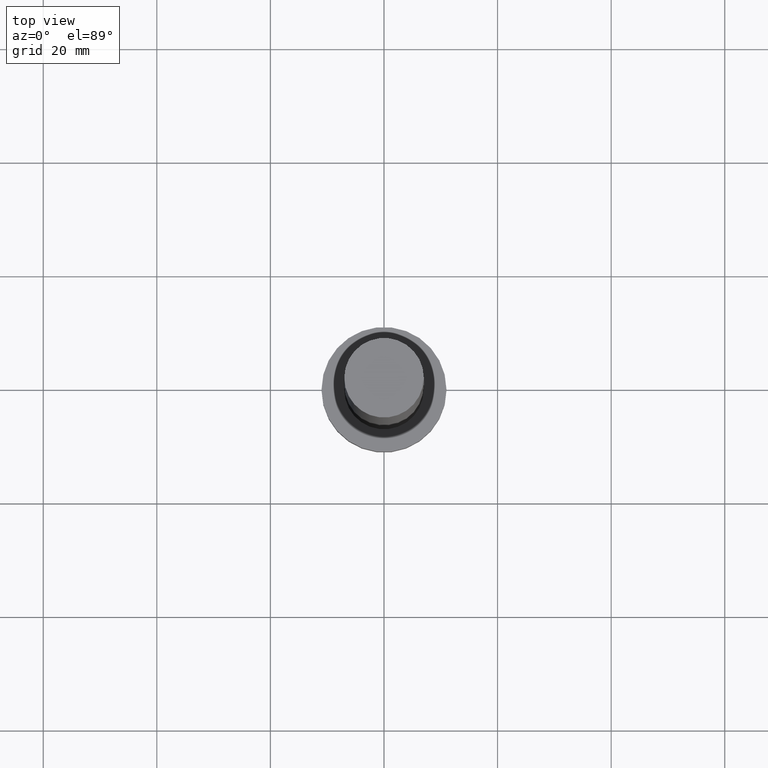
[diagram: clean part render]
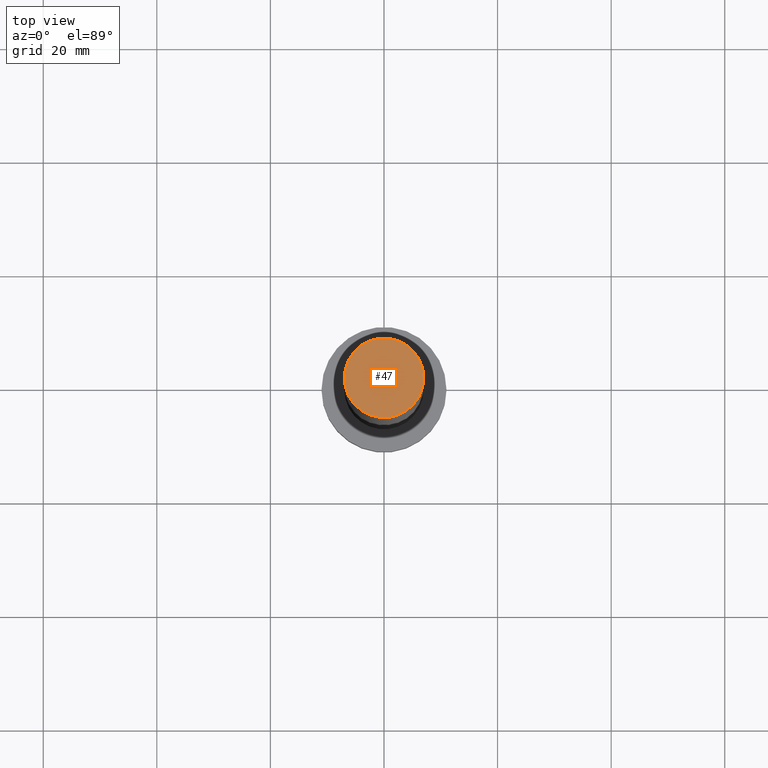
[diagram: same view with one face highlighted and labeled with its STEP entity id]
A machine part, top view. The second image highlights one B-rep face of the part: STEP entity #47.
In plain terms, the highlighted planar face has unit normal (0, 0, 1).
Its self-contained STEP definition (entity closure, byte-faithful):
#27 = AXIS2_PLACEMENT_3D ( 'NONE', #40, #73, #112 ) ;
#28 = EDGE_CURVE ( 'NONE', #157, #149, #156, .T. ) ;
#35 = DIRECTION ( 'NONE',  ( 0.000000000000000000, 0.000000000000000000, 1.000000000000000000 ) ) ;
#37 = FACE_OUTER_BOUND ( 'NONE', #85, .T. ) ;
#40 = CARTESIAN_POINT ( 'NONE',  ( 0.000000000000000000, 0.000000000000000000, 125.0000000000000000 ) ) ;
#47 = ADVANCED_FACE ( 'NONE', ( #37 ), #228, .T. ) ;
#59 = CARTESIAN_POINT ( 'NONE',  ( -7.000000000000000000, 0.000000000000000000, 125.0000000000000000 ) ) ;
#73 = DIRECTION ( 'NONE',  ( 0.000000000000000000, 0.000000000000000000, 1.000000000000000000 ) ) ;
#80 = DIRECTION ( 'NONE',  ( 1.000000000000000000, 0.000000000000000000, 0.000000000000000000 ) ) ;
#82 = ORIENTED_EDGE ( 'NONE', *, *, #169, .T. ) ;
#85 = EDGE_LOOP ( 'NONE', ( #151, #82 ) ) ;
#112 = DIRECTION ( 'NONE',  ( 1.000000000000000000, 0.000000000000000000, -0.000000000000000000 ) ) ;
#116 = CARTESIAN_POINT ( 'NONE',  ( 7.000000000000000000, 8.572527594031473190E-16, 125.0000000000000000 ) ) ;
#117 = DIRECTION ( 'NONE',  ( 0.000000000000000000, 0.000000000000000000, 1.000000000000000000 ) ) ;
#125 = DIRECTION ( 'NONE',  ( 1.000000000000000000, 0.000000000000000000, 0.000000000000000000 ) ) ;
#140 = CARTESIAN_POINT ( 'NONE',  ( 0.000000000000000000, 0.000000000000000000, 125.0000000000000000 ) ) ;
#148 = CIRCLE ( 'NONE', #166, 7.000000000000000000 ) ;
#149 = VERTEX_POINT ( 'NONE', #116 ) ;
#151 = ORIENTED_EDGE ( 'NONE', *, *, #28, .T. ) ;
#156 = CIRCLE ( 'NONE', #241, 7.000000000000000000 ) ;
#157 = VERTEX_POINT ( 'NONE', #59 ) ;
#166 = AXIS2_PLACEMENT_3D ( 'NONE', #140, #117, #80 ) ;
#169 = EDGE_CURVE ( 'NONE', #149, #157, #148, .T. ) ;
#207 = CARTESIAN_POINT ( 'NONE',  ( 0.000000000000000000, 0.000000000000000000, 125.0000000000000000 ) ) ;
#228 = PLANE ( 'NONE',  #27 ) ;
#241 = AXIS2_PLACEMENT_3D ( 'NONE', #207, #35, #125 ) ;